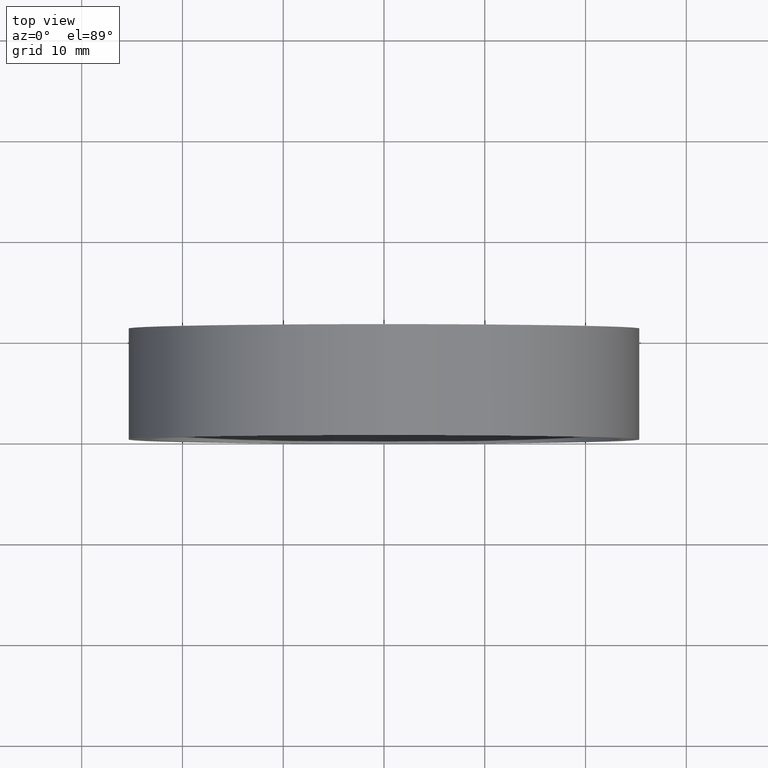
[diagram: clean part render]
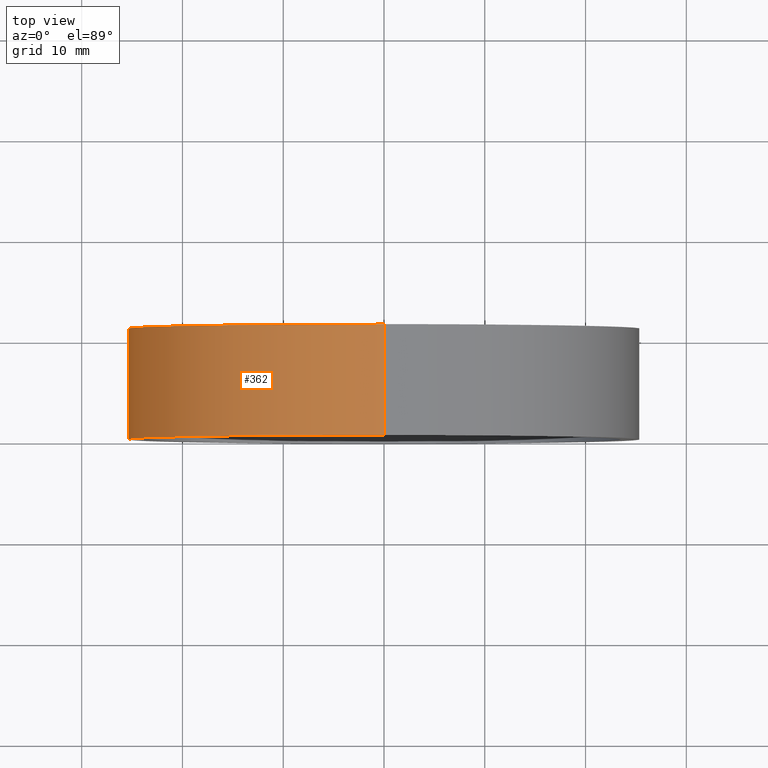
[diagram: same view with one face highlighted and labeled with its STEP entity id]
A machine part, top view. The second image highlights one B-rep face of the part: STEP entity #362.
In plain terms, the highlighted cylindrical surface (partial cylindrical patch) has radius 25.4 mm, axis along (-0, 1, -0).
Its self-contained STEP definition (entity closure, byte-faithful):
#5 = CARTESIAN_POINT ( 'NONE',  ( 3.110602869834277300E-015, 10.99999999999999600, -25.40000000000000200 ) ) ;
#13 = CARTESIAN_POINT ( 'NONE',  ( 3.110602869834277300E-015, 0.0000000000000000000, -25.40000000000000200 ) ) ;
#14 = DIRECTION ( 'NONE',  ( -0.0000000000000000000, 1.000000000000000000, -0.0000000000000000000 ) ) ;
#17 = CIRCLE ( 'NONE', #391, 25.40000000000000200 ) ;
#37 = CIRCLE ( 'NONE', #109, 25.40000000000000200 ) ;
#44 = DIRECTION ( 'NONE',  ( -0.0000000000000000000, 1.000000000000000000, -0.0000000000000000000 ) ) ;
#54 = CARTESIAN_POINT ( 'NONE',  ( 0.0000000000000000000, 10.99999999999999600, 25.40000000000000200 ) ) ;
#59 = VERTEX_POINT ( 'NONE', #383 ) ;
#60 = EDGE_CURVE ( 'NONE', #434, #160, #17, .T. ) ;
#66 = ORIENTED_EDGE ( 'NONE', *, *, #60, .F. ) ;
#71 = VECTOR ( 'NONE', #137, 1000.000000000000000 ) ;
#77 = CARTESIAN_POINT ( 'NONE',  ( 0.0000000000000000000, 60.02082041425541100, 25.40000000000000200 ) ) ;
#92 = CARTESIAN_POINT ( 'NONE',  ( 0.0000000000000000000, 60.02082041425541100, 0.0000000000000000000 ) ) ;
#109 = AXIS2_PLACEMENT_3D ( 'NONE', #374, #157, #156 ) ;
#123 = DIRECTION ( 'NONE',  ( 0.0000000000000000000, 0.0000000000000000000, 1.000000000000000000 ) ) ;
#130 = ORIENTED_EDGE ( 'NONE', *, *, #216, .F. ) ;
#137 = DIRECTION ( 'NONE',  ( -0.0000000000000000000, 1.000000000000000000, -0.0000000000000000000 ) ) ;
#149 = VERTEX_POINT ( 'NONE', #13 ) ;
#156 = DIRECTION ( 'NONE',  ( 0.0000000000000000000, 0.0000000000000000000, 1.000000000000000000 ) ) ;
#157 = DIRECTION ( 'NONE',  ( -0.0000000000000000000, 1.000000000000000000, -0.0000000000000000000 ) ) ;
#160 = VERTEX_POINT ( 'NONE', #54 ) ;
#176 = ORIENTED_EDGE ( 'NONE', *, *, #346, .T. ) ;
#182 = FACE_OUTER_BOUND ( 'NONE', #400, .T. ) ;
#190 = LINE ( 'NONE', #77, #195 ) ;
#191 = DIRECTION ( 'NONE',  ( -0.0000000000000000000, 1.000000000000000000, -0.0000000000000000000 ) ) ;
#195 = VECTOR ( 'NONE', #44, 1000.000000000000000 ) ;
#198 = DIRECTION ( 'NONE',  ( 0.0000000000000000000, 0.0000000000000000000, 1.000000000000000000 ) ) ;
#206 = CYLINDRICAL_SURFACE ( 'NONE', #375, 25.40000000000000200 ) ;
#216 = EDGE_CURVE ( 'NONE', #149, #434, #289, .T. ) ;
#239 = EDGE_CURVE ( 'NONE', #149, #59, #37, .T. ) ;
#242 = ORIENTED_EDGE ( 'NONE', *, *, #239, .T. ) ;
#289 = LINE ( 'NONE', #417, #71 ) ;
#346 = EDGE_CURVE ( 'NONE', #59, #160, #190, .T. ) ;
#362 = ADVANCED_FACE ( 'NONE', ( #182 ), #206, .T. ) ;
#374 = CARTESIAN_POINT ( 'NONE',  ( 0.0000000000000000000, 0.0000000000000000000, 0.0000000000000000000 ) ) ;
#375 = AXIS2_PLACEMENT_3D ( 'NONE', #92, #191, #123 ) ;
#383 = CARTESIAN_POINT ( 'NONE',  ( 0.0000000000000000000, 0.0000000000000000000, 25.40000000000000200 ) ) ;
#391 = AXIS2_PLACEMENT_3D ( 'NONE', #392, #14, #198 ) ;
#392 = CARTESIAN_POINT ( 'NONE',  ( 0.0000000000000000000, 10.99999999999999600, 0.0000000000000000000 ) ) ;
#400 = EDGE_LOOP ( 'NONE', ( #130, #242, #176, #66 ) ) ;
#417 = CARTESIAN_POINT ( 'NONE',  ( 3.110602869834277300E-015, 60.02082041425541100, -25.40000000000000200 ) ) ;
#434 = VERTEX_POINT ( 'NONE', #5 ) ;